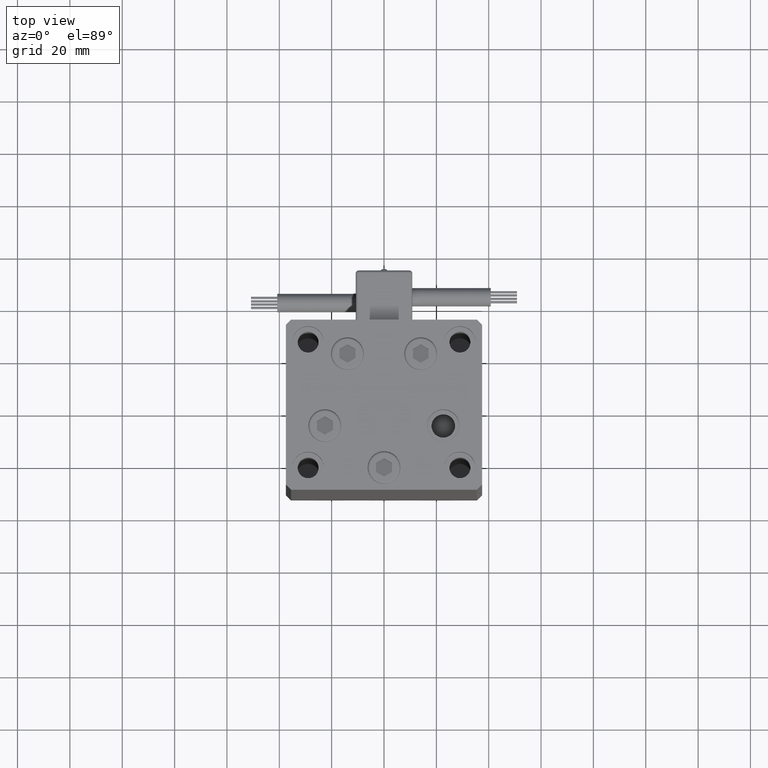
[diagram: clean part render]
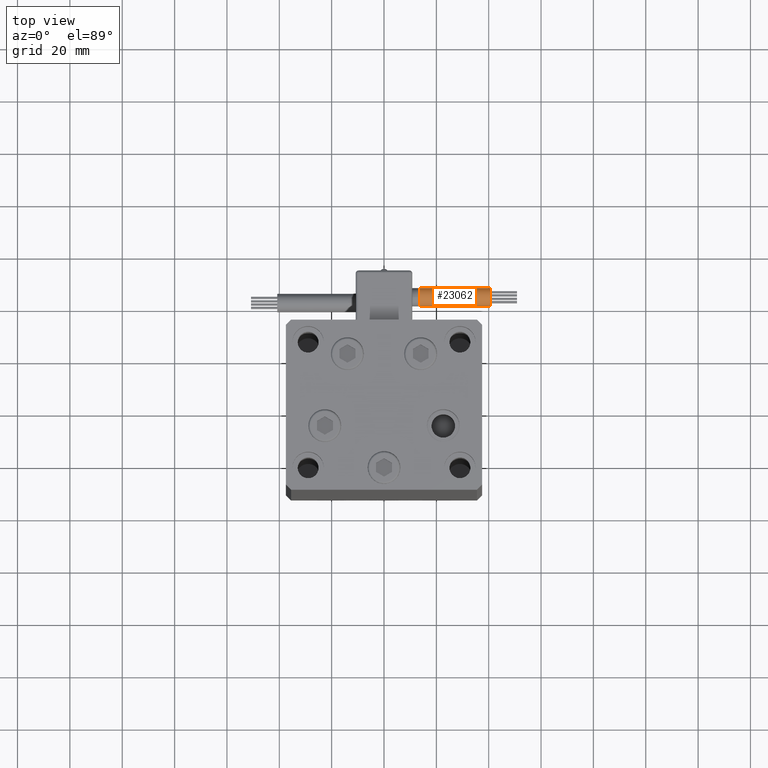
[diagram: same view with one face highlighted and labeled with its STEP entity id]
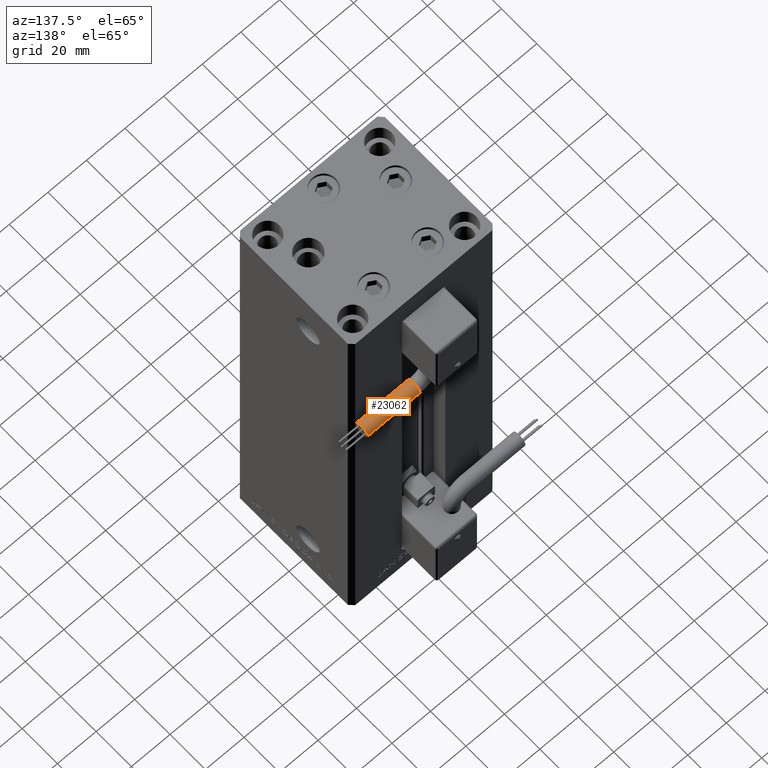
[diagram: same view with one face highlighted and labeled with its STEP entity id]
A machine part, top view. The second image highlights one B-rep face of the part: STEP entity #23062.
A second angle (auxiliary view) of the same face is appended — the face is thin or edge-on in the first view.
In plain terms, the highlighted cylindrical surface (edge-blend (fillet) strip) has radius 3.5 mm, axis along (1, -0, 0).
Its self-contained STEP definition (entity closure, byte-faithful):
#1312 = ORIENTED_EDGE ( 'NONE', *, *, #47340, .T. ) ;
#3807 = AXIS2_PLACEMENT_3D ( 'NONE', #34726, #34997, #50865 ) ;
#4276 = CARTESIAN_POINT ( 'NONE',  ( 40.80000000000000426, 38.50000000000000000, -65.00000000000000000 ) ) ;
#5112 = DIRECTION ( 'NONE',  ( 1.000000000000000000, 0.000000000000000000, 2.220446049250000002E-16 ) ) ;
#6682 = AXIS2_PLACEMENT_3D ( 'NONE', #20998, #5112, #21252 ) ;
#7016 = EDGE_CURVE ( 'NONE', #47000, #45060, #26609, .T. ) ;
#12601 = ORIENTED_EDGE ( 'NONE', *, *, #7016, .T. ) ;
#12894 = FACE_OUTER_BOUND ( 'NONE', #19383, .T. ) ;
#13254 = EDGE_CURVE ( 'NONE', #36838, #42473, #50309, .T. ) ;
#14429 = ORIENTED_EDGE ( 'NONE', *, *, #22596, .T. ) ;
#14673 = CARTESIAN_POINT ( 'NONE',  ( 13.79999999999999893, 38.50000000000000000, -65.00000000000000000 ) ) ;
#15614 = CARTESIAN_POINT ( 'NONE',  ( 40.80000000000000426, 45.50000000000000711, -65.00000000000000000 ) ) ;
#15976 = AXIS2_PLACEMENT_3D ( 'NONE', #16580, #32726, #45948 ) ;
#16580 = CARTESIAN_POINT ( 'NONE',  ( 13.79999999999999893, 42.00000000000000000, -65.00000000000000000 ) ) ;
#16768 = DIRECTION ( 'NONE',  ( 1.000000000000000000, -2.599999999999999847E-16, 2.220446049250000002E-16 ) ) ;
#19383 = EDGE_LOOP ( 'NONE', ( #34083, #14429, #12601, #1312, #33491 ) ) ;
#20998 = CARTESIAN_POINT ( 'NONE',  ( 13.79999999999999893, 42.00000000000000000, -65.00000000000000000 ) ) ;
#21072 = CYLINDRICAL_SURFACE ( 'NONE', #15976, 3.500000000000003109 ) ;
#21252 = DIRECTION ( 'NONE',  ( 0.000000000000000000, 0.000000000000000000, -1.000000000000000000 ) ) ;
#22596 = EDGE_CURVE ( 'NONE', #22750, #47000, #34569, .T. ) ;
#22750 = VERTEX_POINT ( 'NONE', #35520 ) ;
#23062 = ADVANCED_FACE ( 'NONE', ( #12894 ), #21072, .T. ) ;
#23953 = CARTESIAN_POINT ( 'NONE',  ( 13.79999999999999716, 38.50000000000000000, -65.00000000000000000 ) ) ;
#26609 = CIRCLE ( 'NONE', #3807, 3.500000000000003109 ) ;
#27132 = LINE ( 'NONE', #23953, #41477 ) ;
#27893 = LINE ( 'NONE', #32913, #51747 ) ;
#30138 = DIRECTION ( 'NONE',  ( 1.000000000000000000, 0.000000000000000000, 2.220446049250000002E-16 ) ) ;
#31264 = CARTESIAN_POINT ( 'NONE',  ( 13.79999999999999893, 41.99999999999999289, -61.50000000000000000 ) ) ;
#32726 = DIRECTION ( 'NONE',  ( 1.000000000000000000, -2.599999999999999847E-16, 2.220446049250000002E-16 ) ) ;
#32913 = CARTESIAN_POINT ( 'NONE',  ( 13.80000000000000071, 45.50000000000000711, -65.00000000000000000 ) ) ;
#33491 = ORIENTED_EDGE ( 'NONE', *, *, #13254, .F. ) ;
#33940 = EDGE_CURVE ( 'NONE', #22750, #36838, #27893, .T. ) ;
#34083 = ORIENTED_EDGE ( 'NONE', *, *, #33940, .F. ) ;
#34569 = CIRCLE ( 'NONE', #6682, 3.500000000000003109 ) ;
#34726 = CARTESIAN_POINT ( 'NONE',  ( 13.79999999999999893, 42.00000000000000000, -65.00000000000000000 ) ) ;
#34997 = DIRECTION ( 'NONE',  ( 1.000000000000000000, 0.000000000000000000, 2.220446049250000002E-16 ) ) ;
#35520 = CARTESIAN_POINT ( 'NONE',  ( 13.79999999999999893, 45.50000000000000711, -65.00000000000000000 ) ) ;
#36838 = VERTEX_POINT ( 'NONE', #15614 ) ;
#41477 = VECTOR ( 'NONE', #51231, 1000.000000000000000 ) ;
#42473 = VERTEX_POINT ( 'NONE', #4276 ) ;
#43352 = AXIS2_PLACEMENT_3D ( 'NONE', #51051, #30138, #46301 ) ;
#45060 = VERTEX_POINT ( 'NONE', #14673 ) ;
#45948 = DIRECTION ( 'NONE',  ( -4.956352788505158337E-16, -1.000000000000000000, 0.000000000000000000 ) ) ;
#46301 = DIRECTION ( 'NONE',  ( 0.000000000000000000, 0.000000000000000000, -1.000000000000000000 ) ) ;
#47000 = VERTEX_POINT ( 'NONE', #31264 ) ;
#47340 = EDGE_CURVE ( 'NONE', #45060, #42473, #27132, .T. ) ;
#50309 = CIRCLE ( 'NONE', #43352, 3.500000000000003109 ) ;
#50865 = DIRECTION ( 'NONE',  ( 0.000000000000000000, 0.000000000000000000, -1.000000000000000000 ) ) ;
#51051 = CARTESIAN_POINT ( 'NONE',  ( 40.80000000000000426, 42.00000000000000000, -65.00000000000000000 ) ) ;
#51231 = DIRECTION ( 'NONE',  ( 1.000000000000000000, -2.599999999999999847E-16, 2.220446049250000002E-16 ) ) ;
#51747 = VECTOR ( 'NONE', #16768, 1000.000000000000000 ) ;